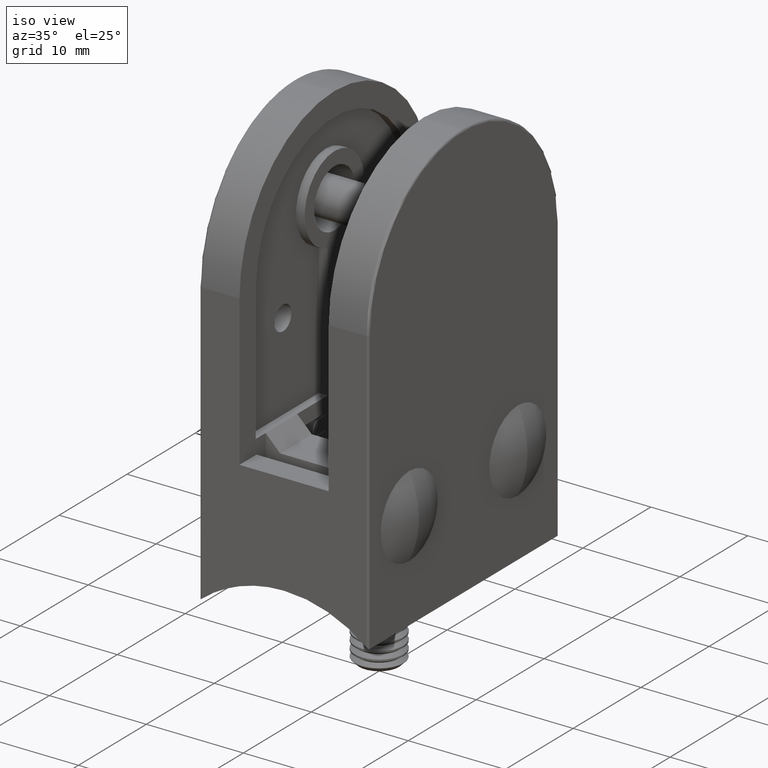
[diagram: clean part render]
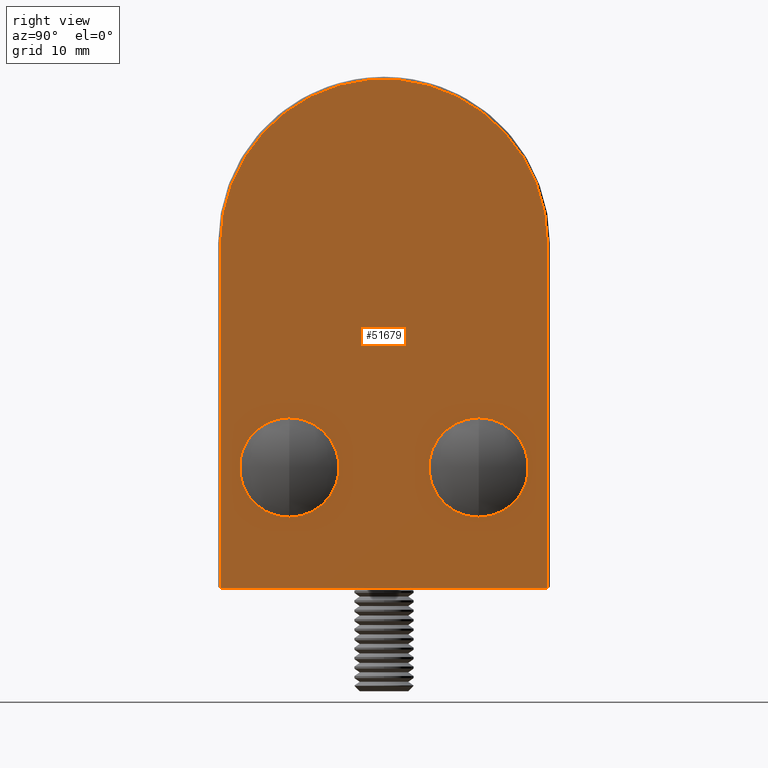
[diagram: tour spotlight — one face highlighted and labeled with its STEP entity id]
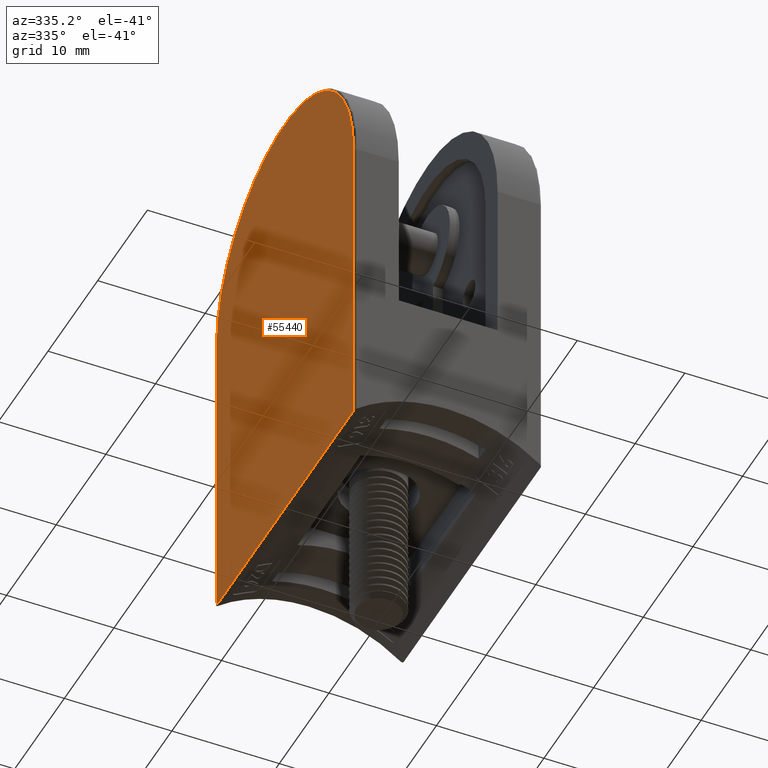
[diagram: tour spotlight — one face highlighted and labeled with its STEP entity id]
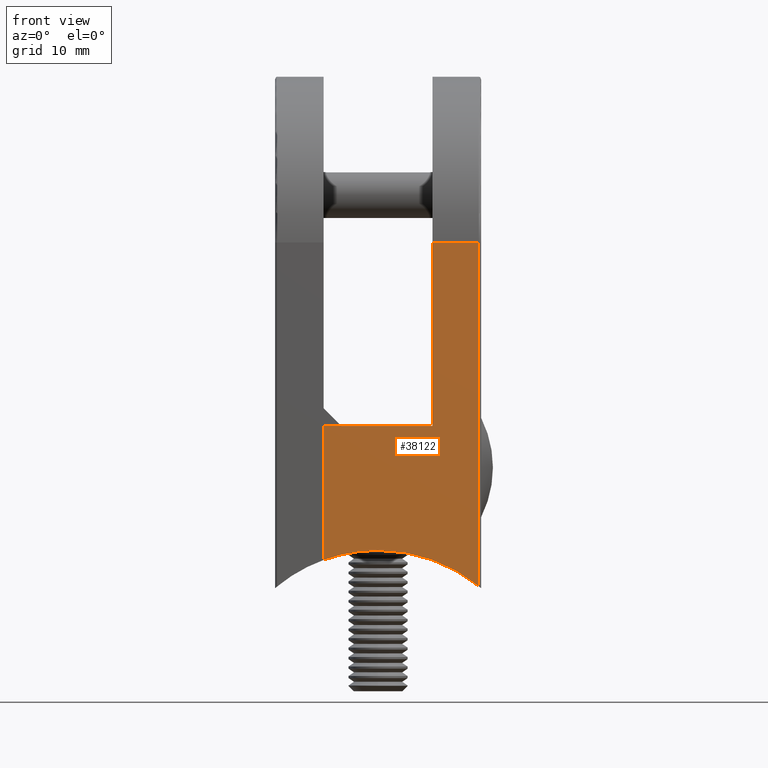
[diagram: tour spotlight — one face highlighted and labeled with its STEP entity id]
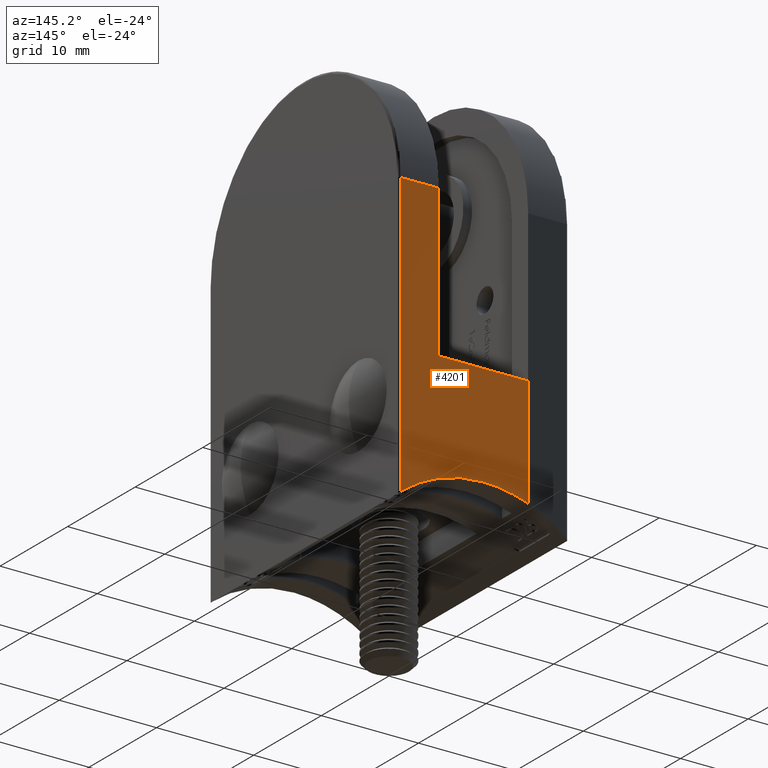
[diagram: tour spotlight — one face highlighted and labeled with its STEP entity id]
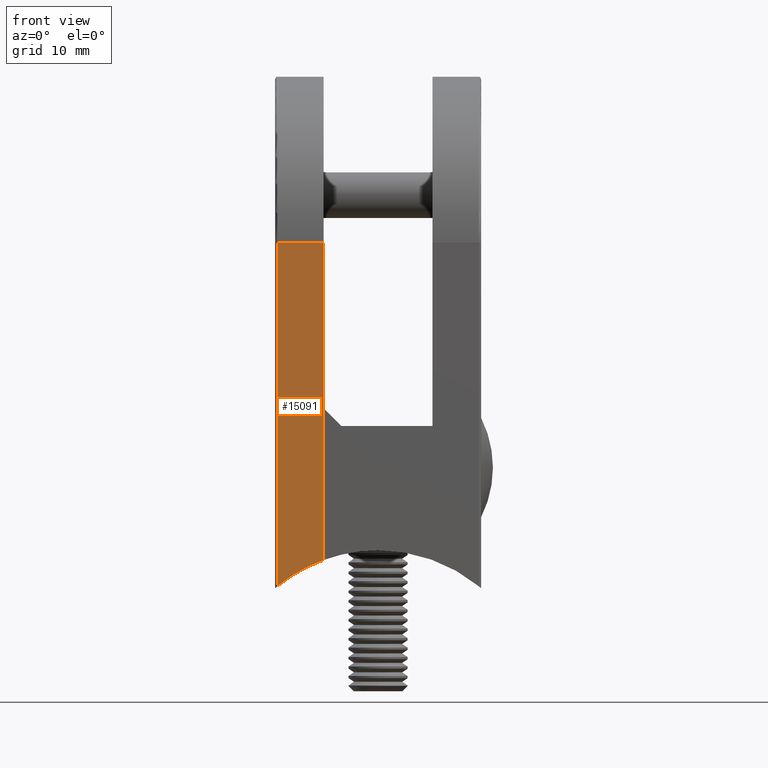
[diagram: tour spotlight — one face highlighted and labeled with its STEP entity id]
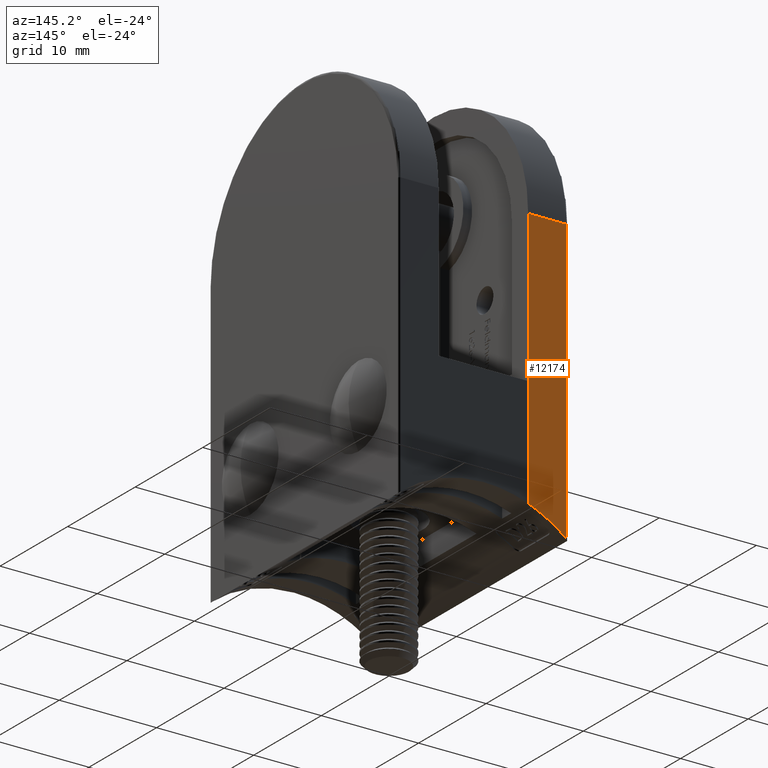
[diagram: tour spotlight — one face highlighted and labeled with its STEP entity id]
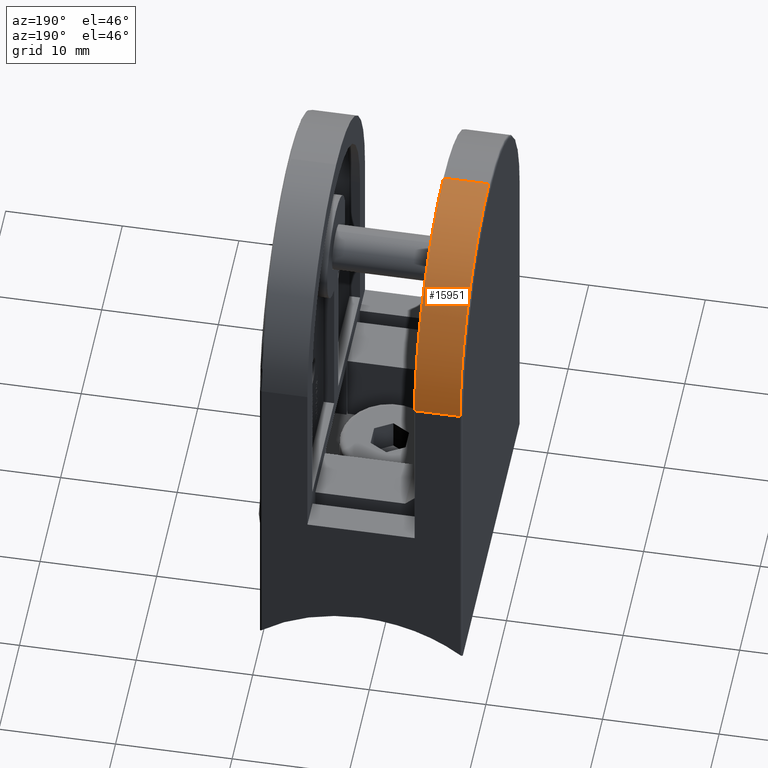
[diagram: tour spotlight — one face highlighted and labeled with its STEP entity id]
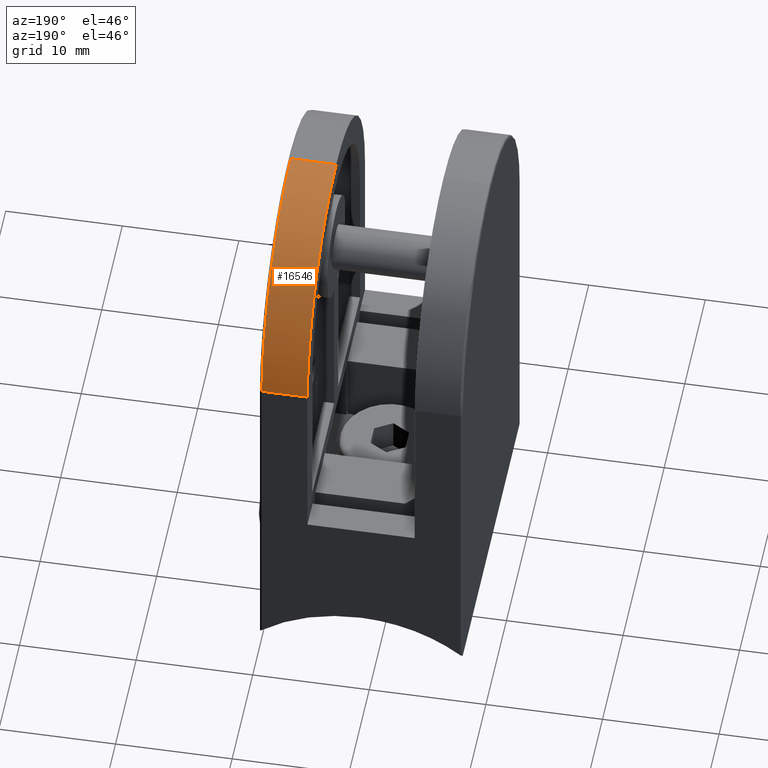
[diagram: tour spotlight — one face highlighted and labeled with its STEP entity id]
A machine part: a face-by-face anatomy tour. The part has 1387 B-rep faces; the first image is the clean iso view, then the 8 largest visible faces are spotlighted one at a time (largest first), each with its STEP entity span.

Face 1 — right view, entity #51679. In plain terms, the highlighted planar face has unit normal (-1, 0, 0).
Definition (entity closure, byte-faithful):
#716 = DIRECTION ( 'NONE',  ( -0.0000000000000000000, 6.672013369141565500E-017, -1.000000000000000000 ) ) ;
#1536 = DIRECTION ( 'NONE',  ( 0.0000000000000000000, 0.0000000000000000000, -1.000000000000000000 ) ) ;
#2197 = CARTESIAN_POINT ( 'NONE',  ( -3.469446951953614200E-015, -8.000000000000000000, 6.999999999999992900 ) ) ;
#2755 = EDGE_CURVE ( 'NONE', #27690, #36211, #44305, .T. ) ;
#2983 = VERTEX_POINT ( 'NONE', #19299 ) ;
#3291 = CIRCLE ( 'NONE', #58271, 4.099999999999998800 ) ;
#4502 = DIRECTION ( 'NONE',  ( 0.0000000000000000000, 0.0000000000000000000, 1.000000000000000000 ) ) ;
#4961 = VECTOR ( 'NONE', #716, 1000.000000000000000 ) ;
#5040 = EDGE_CURVE ( 'NONE', #36211, #27690, #3291, .T. ) ;
#5550 = AXIS2_PLACEMENT_3D ( 'NONE', #8278, #53918, #4502 ) ;
#5699 = EDGE_CURVE ( 'NONE', #12310, #24346, #25059, .T. ) ;
#6159 = FACE_OUTER_BOUND ( 'NONE', #17162, .T. ) ;
#6217 = DIRECTION ( 'NONE',  ( -1.000000000000000000, -0.0000000000000000000, -0.0000000000000000000 ) ) ;
#7561 = ORIENTED_EDGE ( 'NONE', *, *, #56057, .T. ) ;
#7860 = CARTESIAN_POINT ( 'NONE',  ( 0.0000000000000000000, 13.79999999999999400, 25.99999999999999600 ) ) ;
#8278 = CARTESIAN_POINT ( 'NONE',  ( -3.469446951953614200E-015, 8.000000000000000000, 6.999999999999992900 ) ) ;
#8598 = ORIENTED_EDGE ( 'NONE', *, *, #52584, .F. ) ;
#10802 = DIRECTION ( 'NONE',  ( 0.0000000000000000000, -1.000000000000000000, 0.0000000000000000000 ) ) ;
#11569 = PLANE ( 'NONE',  #36671 ) ;
#12310 = VERTEX_POINT ( 'NONE', #36518 ) ;
#13453 = DIRECTION ( 'NONE',  ( -0.0000000000000000000, 6.672013369141565500E-017, 1.000000000000000000 ) ) ;
#14539 = CARTESIAN_POINT ( 'NONE',  ( -3.469446951953614200E-015, 8.000000000000000000, 2.899999999999993700 ) ) ;
#14567 = CARTESIAN_POINT ( 'NONE',  ( 0.0000000000000000000, -13.99999999999999800, -3.192685536652395000 ) ) ;
#15060 = LINE ( 'NONE', #14567, #34160 ) ;
#16161 = DIRECTION ( 'NONE',  ( 0.0000000000000000000, 0.0000000000000000000, 1.000000000000000000 ) ) ;
#16860 = EDGE_CURVE ( 'NONE', #28738, #57009, #36040, .T. ) ;
#17162 = EDGE_LOOP ( 'NONE', ( #24273, #7561, #29109, #23698 ) ) ;
#17283 = CARTESIAN_POINT ( 'NONE',  ( -3.469446951953614200E-015, -8.000000000000000000, 6.999999999999992900 ) ) ;
#18195 = CIRCLE ( 'NONE', #30291, 4.099999999999998800 ) ;
#19137 = CARTESIAN_POINT ( 'NONE',  ( -3.469446951953614200E-015, 8.000000000000000000, 6.999999999999992900 ) ) ;
#19299 = CARTESIAN_POINT ( 'NONE',  ( 0.0000000000000000000, -13.79999999999999700, -3.192685536652395000 ) ) ;
#20245 = DIRECTION ( 'NONE',  ( 1.000000000000000000, 0.0000000000000000000, 0.0000000000000000000 ) ) ;
#20595 = LINE ( 'NONE', #52582, #51028 ) ;
#21629 = DIRECTION ( 'NONE',  ( -1.000000000000000000, -0.0000000000000000000, -0.0000000000000000000 ) ) ;
#22022 = DIRECTION ( 'NONE',  ( 0.0000000000000000000, 0.0000000000000000000, 1.000000000000000000 ) ) ;
#22469 = CARTESIAN_POINT ( 'NONE',  ( -3.469446951953614200E-015, -8.000000000000000000, 11.09999999999999300 ) ) ;
#23640 = DIRECTION ( 'NONE',  ( -1.000000000000000000, -0.0000000000000000000, -0.0000000000000000000 ) ) ;
#23698 = ORIENTED_EDGE ( 'NONE', *, *, #57799, .T. ) ;
#24273 = ORIENTED_EDGE ( 'NONE', *, *, #16860, .T. ) ;
#24346 = VERTEX_POINT ( 'NONE', #22469 ) ;
#25059 = CIRCLE ( 'NONE', #53331, 4.099999999999998800 ) ;
#25658 = EDGE_LOOP ( 'NONE', ( #8598, #48397 ) ) ;
#26596 = CARTESIAN_POINT ( 'NONE',  ( 0.0000000000000000000, -13.79999999999999400, 25.99999999999999600 ) ) ;
#27243 = DIRECTION ( 'NONE',  ( 0.0000000000000000000, 0.0000000000000000000, 1.000000000000000000 ) ) ;
#27690 = VERTEX_POINT ( 'NONE', #45342 ) ;
#28738 = VERTEX_POINT ( 'NONE', #7860 ) ;
#28871 = AXIS2_PLACEMENT_3D ( 'NONE', #33264, #6217, #1536 ) ;
#29109 = ORIENTED_EDGE ( 'NONE', *, *, #45191, .T. ) ;
#30291 = AXIS2_PLACEMENT_3D ( 'NONE', #17283, #21629, #22022 ) ;
#32990 = ORIENTED_EDGE ( 'NONE', *, *, #5040, .F. ) ;
#33264 = CARTESIAN_POINT ( 'NONE',  ( 0.0000000000000000000, 0.0000000000000000000, 25.99999999999999600 ) ) ;
#33737 = DIRECTION ( 'NONE',  ( -1.000000000000000000, -0.0000000000000000000, -0.0000000000000000000 ) ) ;
#33883 = DIRECTION ( 'NONE',  ( 0.0000000000000000000, 0.0000000000000000000, -1.000000000000000000 ) ) ;
#34160 = VECTOR ( 'NONE', #10802, 1000.000000000000000 ) ;
#35418 = VERTEX_POINT ( 'NONE', #26596 ) ;
#36040 = LINE ( 'NONE', #54626, #4961 ) ;
#36211 = VERTEX_POINT ( 'NONE', #14539 ) ;
#36518 = CARTESIAN_POINT ( 'NONE',  ( -3.469446951953614200E-015, -8.000000000000000000, 2.899999999999993700 ) ) ;
#36524 = FACE_BOUND ( 'NONE', #37002, .T. ) ;
#36671 = AXIS2_PLACEMENT_3D ( 'NONE', #38584, #20245, #33883 ) ;
#37002 = EDGE_LOOP ( 'NONE', ( #52027, #32990 ) ) ;
#38584 = CARTESIAN_POINT ( 'NONE',  ( 0.0000000000000000000, 0.0000000000000000000, 25.99999999999999600 ) ) ;
#39659 = CIRCLE ( 'NONE', #28871, 13.79999999999999400 ) ;
#40749 = FACE_BOUND ( 'NONE', #25658, .T. ) ;
#44305 = CIRCLE ( 'NONE', #5550, 4.099999999999998800 ) ;
#45191 = EDGE_CURVE ( 'NONE', #2983, #35418, #20595, .T. ) ;
#45342 = CARTESIAN_POINT ( 'NONE',  ( -3.469446951953614200E-015, 8.000000000000000000, 11.09999999999999300 ) ) ;
#48397 = ORIENTED_EDGE ( 'NONE', *, *, #5699, .F. ) ;
#51028 = VECTOR ( 'NONE', #13453, 1000.000000000000000 ) ;
#51679 = ADVANCED_FACE ( 'NONE', ( #36524, #40749, #6159 ), #11569, .F. ) ;
#52027 = ORIENTED_EDGE ( 'NONE', *, *, #2755, .F. ) ;
#52582 = CARTESIAN_POINT ( 'NONE',  ( 0.0000000000000000000, -13.79999999999999400, 25.99999999999999600 ) ) ;
#52584 = EDGE_CURVE ( 'NONE', #24346, #12310, #18195, .T. ) ;
#53331 = AXIS2_PLACEMENT_3D ( 'NONE', #2197, #33737, #16161 ) ;
#53918 = DIRECTION ( 'NONE',  ( -1.000000000000000000, -0.0000000000000000000, -0.0000000000000000000 ) ) ;
#54626 = CARTESIAN_POINT ( 'NONE',  ( 0.0000000000000000000, 13.79999999999999400, 25.99999999999999600 ) ) ;
#56057 = EDGE_CURVE ( 'NONE', #57009, #2983, #15060, .T. ) ;
#57009 = VERTEX_POINT ( 'NONE', #58199 ) ;
#57799 = EDGE_CURVE ( 'NONE', #35418, #28738, #39659, .T. ) ;
#58199 = CARTESIAN_POINT ( 'NONE',  ( 0.0000000000000000000, 13.79999999999999700, -3.192685536652402100 ) ) ;
#58271 = AXIS2_PLACEMENT_3D ( 'NONE', #19137, #23640, #27243 ) ;

Face 2 — auxiliary view, entity #55440. In plain terms, the highlighted planar face has unit normal (1, 0, 0).
Definition (entity closure, byte-faithful):
#3877 = DIRECTION ( 'NONE',  ( 0.0000000000000000000, -1.000000000000000000, 0.0000000000000000000 ) ) ;
#4145 = EDGE_CURVE ( 'NONE', #19474, #44019, #27920, .T. ) ;
#5224 = ORIENTED_EDGE ( 'NONE', *, *, #9034, .T. ) ;
#6655 = CARTESIAN_POINT ( 'NONE',  ( 0.0000000000000000000, -13.79999999999999500, 25.99999999999999600 ) ) ;
#8171 = EDGE_LOOP ( 'NONE', ( #34215, #36310, #5224, #12371 ) ) ;
#8174 = CARTESIAN_POINT ( 'NONE',  ( 0.0000000000000000000, 13.79999999999999500, 25.99999999999999600 ) ) ;
#9034 = EDGE_CURVE ( 'NONE', #39708, #19474, #48897, .T. ) ;
#12371 = ORIENTED_EDGE ( 'NONE', *, *, #4145, .T. ) ;
#13425 = DIRECTION ( 'NONE',  ( 0.0000000000000000000, -0.0000000000000000000, -1.000000000000000000 ) ) ;
#15015 = CARTESIAN_POINT ( 'NONE',  ( 0.0000000000000000000, 0.0000000000000000000, 25.99999999999999600 ) ) ;
#16413 = VECTOR ( 'NONE', #19406, 1000.000000000000000 ) ;
#16724 = DIRECTION ( 'NONE',  ( -1.000000000000000000, -0.0000000000000000000, -0.0000000000000000000 ) ) ;
#19406 = DIRECTION ( 'NONE',  ( -0.0000000000000000000, -0.0000000000000000000, 1.000000000000000000 ) ) ;
#19474 = VERTEX_POINT ( 'NONE', #6655 ) ;
#20312 = LINE ( 'NONE', #38546, #52857 ) ;
#27920 = CIRCLE ( 'NONE', #51743, 13.79999999999999500 ) ;
#28289 = CARTESIAN_POINT ( 'NONE',  ( 0.0000000000000000000, -13.79999999999999500, 25.99999999999999600 ) ) ;
#31958 = CARTESIAN_POINT ( 'NONE',  ( 8.131516293641283300E-017, -13.79999999999999500, -3.192685536652393200 ) ) ;
#32103 = FACE_OUTER_BOUND ( 'NONE', #8171, .T. ) ;
#32238 = DIRECTION ( 'NONE',  ( 0.0000000000000000000, 0.0000000000000000000, -1.000000000000000000 ) ) ;
#34215 = ORIENTED_EDGE ( 'NONE', *, *, #43221, .T. ) ;
#36310 = ORIENTED_EDGE ( 'NONE', *, *, #39945, .T. ) ;
#38546 = CARTESIAN_POINT ( 'NONE',  ( 0.0000000000000000000, -13.99999999999999500, -3.192685536652393200 ) ) ;
#39708 = VERTEX_POINT ( 'NONE', #31958 ) ;
#39945 = EDGE_CURVE ( 'NONE', #49513, #39708, #20312, .T. ) ;
#40533 = VECTOR ( 'NONE', #13425, 1000.000000000000000 ) ;
#41257 = LINE ( 'NONE', #57510, #40533 ) ;
#41648 = PLANE ( 'NONE',  #54993 ) ;
#43221 = EDGE_CURVE ( 'NONE', #44019, #49513, #41257, .T. ) ;
#44019 = VERTEX_POINT ( 'NONE', #8174 ) ;
#45542 = CARTESIAN_POINT ( 'NONE',  ( 0.0000000000000000000, 13.79999999999999400, -3.192685536652393200 ) ) ;
#46591 = DIRECTION ( 'NONE',  ( 1.000000000000000000, 0.0000000000000000000, 0.0000000000000000000 ) ) ;
#48897 = LINE ( 'NONE', #28289, #16413 ) ;
#49513 = VERTEX_POINT ( 'NONE', #45542 ) ;
#51743 = AXIS2_PLACEMENT_3D ( 'NONE', #53504, #16724, #57660 ) ;
#52857 = VECTOR ( 'NONE', #3877, 1000.000000000000000 ) ;
#53504 = CARTESIAN_POINT ( 'NONE',  ( 0.0000000000000000000, 0.0000000000000000000, 25.99999999999999600 ) ) ;
#54993 = AXIS2_PLACEMENT_3D ( 'NONE', #15015, #46591, #32238 ) ;
#55440 = ADVANCED_FACE ( 'NONE', ( #32103 ), #41648, .F. ) ;
#57510 = CARTESIAN_POINT ( 'NONE',  ( 0.0000000000000000000, 13.79999999999999500, 25.99999999999999600 ) ) ;
#57660 = DIRECTION ( 'NONE',  ( 0.0000000000000000000, 0.0000000000000000000, -1.000000000000000000 ) ) ;

Face 3 — front view, entity #38122. In plain terms, the highlighted planar face has unit normal (-0, 1, 0).
Definition (entity closure, byte-faithful):
#1375 = VERTEX_POINT ( 'NONE', #5293 ) ;
#3148 = CARTESIAN_POINT ( 'NONE',  ( 4.099999999999999600, 13.99999999999999300, 25.99999999999999600 ) ) ;
#3501 = VERTEX_POINT ( 'NONE', #38706 ) ;
#5293 = CARTESIAN_POINT ( 'NONE',  ( 4.099999999999999600, 13.99999999999999500, 10.49999999999999300 ) ) ;
#6436 = CARTESIAN_POINT ( 'NONE',  ( 4.099999999999999600, 13.99999999999999300, 25.99999999999999600 ) ) ;
#7989 = AXIS2_PLACEMENT_3D ( 'NONE', #3148, #48133, #52520 ) ;
#8605 = LINE ( 'NONE', #25862, #52387 ) ;
#8696 = CARTESIAN_POINT ( 'NONE',  ( 13.29999999999999900, 13.99999999999999500, 10.49999999999999300 ) ) ;
#10483 = VERTEX_POINT ( 'NONE', #38094 ) ;
#13405 = FACE_OUTER_BOUND ( 'NONE', #58086, .T. ) ;
#14702 = DIRECTION ( 'NONE',  ( 0.0000000000000000000, -1.000000000000000000, -6.672013369141565500E-017 ) ) ;
#15075 = DIRECTION ( 'NONE',  ( 0.0000000000000000000, 1.289757231209522100E-016, -1.000000000000000000 ) ) ;
#15724 = DIRECTION ( 'NONE',  ( -1.000000000000000000, -0.0000000000000000000, -0.0000000000000000000 ) ) ;
#15755 = EDGE_CURVE ( 'NONE', #51602, #1375, #26922, .T. ) ;
#16836 = VERTEX_POINT ( 'NONE', #31299 ) ;
#16891 = CARTESIAN_POINT ( 'NONE',  ( 8.699999999999999300, 13.99999999999999500, -13.44999999999999900 ) ) ;
#18229 = EDGE_CURVE ( 'NONE', #1375, #56488, #57915, .T. ) ;
#20310 = CARTESIAN_POINT ( 'NONE',  ( 4.099999999999999600, 13.99999999999999300, 25.99999999999999600 ) ) ;
#20386 = AXIS2_PLACEMENT_3D ( 'NONE', #16891, #53280, #49301 ) ;
#20387 = ORIENTED_EDGE ( 'NONE', *, *, #52612, .T. ) ;
#22733 = AXIS2_PLACEMENT_3D ( 'NONE', #42099, #14702, #15075 ) ;
#24442 = EDGE_CURVE ( 'NONE', #56488, #16836, #29181, .T. ) ;
#24762 = EDGE_CURVE ( 'NONE', #3501, #47650, #30587, .T. ) ;
#25612 = PLANE ( 'NONE',  #7989 ) ;
#25862 = CARTESIAN_POINT ( 'NONE',  ( 13.29999999999999900, 13.99999999999999500, -6.938893903907228400E-015 ) ) ;
#26777 = LINE ( 'NONE', #38309, #54396 ) ;
#26922 = LINE ( 'NONE', #38201, #40332 ) ;
#29181 = LINE ( 'NONE', #6436, #46865 ) ;
#29429 = CIRCLE ( 'NONE', #20386, 13.44999999999999900 ) ;
#30587 = CIRCLE ( 'NONE', #22733, 13.44999999999999900 ) ;
#31267 = CARTESIAN_POINT ( 'NONE',  ( 8.699999999999999300, 13.99999999999999300, 0.0000000000000000000 ) ) ;
#31299 = CARTESIAN_POINT ( 'NONE',  ( 0.2000000000000000900, 13.99999999999999300, 25.99999999999999600 ) ) ;
#32828 = ORIENTED_EDGE ( 'NONE', *, *, #24442, .F. ) ;
#34347 = ORIENTED_EDGE ( 'NONE', *, *, #58449, .F. ) ;
#34954 = DIRECTION ( 'NONE',  ( 0.0000000000000000000, 0.0000000000000000000, 1.000000000000000000 ) ) ;
#36417 = ORIENTED_EDGE ( 'NONE', *, *, #18229, .F. ) ;
#38094 = CARTESIAN_POINT ( 'NONE',  ( 0.2000000000000001200, 13.99999999999999600, -3.026349008144994600 ) ) ;
#38122 = ADVANCED_FACE ( 'NONE', ( #13405 ), #25612, .F. ) ;
#38201 = CARTESIAN_POINT ( 'NONE',  ( 13.29999999999999900, 13.99999999999999500, 10.49999999999999300 ) ) ;
#38309 = CARTESIAN_POINT ( 'NONE',  ( 0.2000000000000000900, 13.99999999999999300, 25.99999999999999600 ) ) ;
#38706 = CARTESIAN_POINT ( 'NONE',  ( 13.29999999999999700, 13.99999999999999500, -0.8110720391324346400 ) ) ;
#40332 = VECTOR ( 'NONE', #15724, 1000.000000000000000 ) ;
#41961 = DIRECTION ( 'NONE',  ( -1.000000000000000000, -0.0000000000000000000, -0.0000000000000000000 ) ) ;
#42099 = CARTESIAN_POINT ( 'NONE',  ( 8.699999999999999300, 13.99999999999999500, -13.44999999999999900 ) ) ;
#46865 = VECTOR ( 'NONE', #41961, 1000.000000000000000 ) ;
#47650 = VERTEX_POINT ( 'NONE', #31267 ) ;
#48133 = DIRECTION ( 'NONE',  ( 0.0000000000000000000, -1.000000000000000000, -6.672013369141565500E-017 ) ) ;
#49301 = DIRECTION ( 'NONE',  ( 0.0000000000000000000, 1.289757231209522100E-016, -1.000000000000000000 ) ) ;
#50113 = EDGE_CURVE ( 'NONE', #10483, #16836, #26777, .T. ) ;
#51602 = VERTEX_POINT ( 'NONE', #8696 ) ;
#51952 = DIRECTION ( 'NONE',  ( -0.0000000000000000000, -6.672013369141565500E-017, 1.000000000000000000 ) ) ;
#52331 = CARTESIAN_POINT ( 'NONE',  ( 4.099999999999999600, 13.99999999999999300, 25.99999999999999600 ) ) ;
#52387 = VECTOR ( 'NONE', #34954, 1000.000000000000000 ) ;
#52520 = DIRECTION ( 'NONE',  ( 0.0000000000000000000, 6.672013369141565500E-017, -1.000000000000000000 ) ) ;
#52612 = EDGE_CURVE ( 'NONE', #47650, #10483, #29429, .T. ) ;
#52736 = ORIENTED_EDGE ( 'NONE', *, *, #50113, .T. ) ;
#53280 = DIRECTION ( 'NONE',  ( 0.0000000000000000000, -1.000000000000000000, -6.672013369141565500E-017 ) ) ;
#53533 = ORIENTED_EDGE ( 'NONE', *, *, #24762, .T. ) ;
#53827 = ORIENTED_EDGE ( 'NONE', *, *, #15755, .F. ) ;
#54365 = VECTOR ( 'NONE', #51952, 1000.000000000000000 ) ;
#54396 = VECTOR ( 'NONE', #56778, 1000.000000000000000 ) ;
#56488 = VERTEX_POINT ( 'NONE', #52331 ) ;
#56778 = DIRECTION ( 'NONE',  ( 0.0000000000000000000, -6.672013369141565500E-017, 1.000000000000000000 ) ) ;
#57915 = LINE ( 'NONE', #20310, #54365 ) ;
#58086 = EDGE_LOOP ( 'NONE', ( #34347, #53533, #20387, #52736, #32828, #36417, #53827 ) ) ;
#58449 = EDGE_CURVE ( 'NONE', #3501, #51602, #8605, .T. ) ;

Face 4 — auxiliary view, entity #4201. In plain terms, the highlighted planar face has unit normal (0, -1, -0).
Definition (entity closure, byte-faithful):
#457 = CARTESIAN_POINT ( 'NONE',  ( 8.699999999999999300, -13.99999999999999800, -13.44999999999999900 ) ) ;
#672 = DIRECTION ( 'NONE',  ( 0.0000000000000000000, 0.0000000000000000000, 1.000000000000000000 ) ) ;
#1190 = VERTEX_POINT ( 'NONE', #27003 ) ;
#1952 = VECTOR ( 'NONE', #55315, 1000.000000000000000 ) ;
#3926 = CARTESIAN_POINT ( 'NONE',  ( 0.2000000000000000900, -13.99999999999999500, -6.938893903907228400E-015 ) ) ;
#4201 = ADVANCED_FACE ( 'NONE', ( #28640 ), #25554, .F. ) ;
#6640 = EDGE_LOOP ( 'NONE', ( #43501, #52207, #13578, #8823, #40469, #10346, #13765 ) ) ;
#7626 = CARTESIAN_POINT ( 'NONE',  ( 4.099999999999999600, -13.99999999999999500, -6.938893903907228400E-015 ) ) ;
#8823 = ORIENTED_EDGE ( 'NONE', *, *, #24975, .F. ) ;
#10346 = ORIENTED_EDGE ( 'NONE', *, *, #52404, .F. ) ;
#10437 = VECTOR ( 'NONE', #19111, 1000.000000000000000 ) ;
#11917 = AXIS2_PLACEMENT_3D ( 'NONE', #31847, #22529, #672 ) ;
#13578 = ORIENTED_EDGE ( 'NONE', *, *, #17472, .T. ) ;
#13765 = ORIENTED_EDGE ( 'NONE', *, *, #34211, .T. ) ;
#14297 = AXIS2_PLACEMENT_3D ( 'NONE', #7626, #57211, #21422 ) ;
#15016 = EDGE_CURVE ( 'NONE', #29301, #45323, #37887, .T. ) ;
#15789 = VERTEX_POINT ( 'NONE', #20658 ) ;
#17472 = EDGE_CURVE ( 'NONE', #45323, #32755, #43020, .T. ) ;
#18209 = VECTOR ( 'NONE', #49130, 1000.000000000000000 ) ;
#19111 = DIRECTION ( 'NONE',  ( -0.0000000000000000000, -6.672013369141565500E-017, -1.000000000000000000 ) ) ;
#19134 = CARTESIAN_POINT ( 'NONE',  ( 8.699999999999999300, -13.99999999999999800, 0.0000000000000000000 ) ) ;
#19440 = EDGE_CURVE ( 'NONE', #47051, #1190, #21025, .T. ) ;
#20658 = CARTESIAN_POINT ( 'NONE',  ( 0.2000000000000000900, -13.99999999999999300, 25.99999999999999600 ) ) ;
#21025 = LINE ( 'NONE', #42179, #1952 ) ;
#21395 = VECTOR ( 'NONE', #34614, 1000.000000000000000 ) ;
#21422 = DIRECTION ( 'NONE',  ( 0.0000000000000000000, 6.672013369141565500E-017, 1.000000000000000000 ) ) ;
#21680 = CARTESIAN_POINT ( 'NONE',  ( 4.099999999999999600, -13.99999999999999300, 25.99999999999999600 ) ) ;
#22529 = DIRECTION ( 'NONE',  ( 0.0000000000000000000, 1.000000000000000000, 0.0000000000000000000 ) ) ;
#24975 = EDGE_CURVE ( 'NONE', #47051, #32755, #29883, .T. ) ;
#25154 = LINE ( 'NONE', #33204, #54934 ) ;
#25554 = PLANE ( 'NONE',  #14297 ) ;
#25917 = CARTESIAN_POINT ( 'NONE',  ( 13.29999999999999900, -13.99999999999999800, -0.8110720391324328600 ) ) ;
#27003 = CARTESIAN_POINT ( 'NONE',  ( 4.099999999999999600, -13.99999999999999500, 10.49999999999999100 ) ) ;
#28640 = FACE_OUTER_BOUND ( 'NONE', #6640, .T. ) ;
#29301 = VERTEX_POINT ( 'NONE', #49474 ) ;
#29883 = LINE ( 'NONE', #52623, #21395 ) ;
#31847 = CARTESIAN_POINT ( 'NONE',  ( 8.699999999999999300, -13.99999999999999800, -13.44999999999999900 ) ) ;
#32566 = DIRECTION ( 'NONE',  ( 0.0000000000000000000, 1.000000000000000000, 0.0000000000000000000 ) ) ;
#32755 = VERTEX_POINT ( 'NONE', #25917 ) ;
#33204 = CARTESIAN_POINT ( 'NONE',  ( 4.099999999999999600, -13.99999999999999300, 25.99999999999999600 ) ) ;
#34211 = EDGE_CURVE ( 'NONE', #44486, #15789, #25154, .T. ) ;
#34614 = DIRECTION ( 'NONE',  ( -0.0000000000000000000, 3.304235192336776500E-016, -1.000000000000000000 ) ) ;
#34646 = CARTESIAN_POINT ( 'NONE',  ( 13.29999999999999900, -13.99999999999999800, 10.49999999999999100 ) ) ;
#37887 = CIRCLE ( 'NONE', #11917, 13.44999999999999900 ) ;
#39645 = EDGE_CURVE ( 'NONE', #15789, #29301, #57119, .T. ) ;
#40469 = ORIENTED_EDGE ( 'NONE', *, *, #19440, .T. ) ;
#41196 = CARTESIAN_POINT ( 'NONE',  ( 4.099999999999999600, -13.99999999999999500, -6.938893903907228400E-015 ) ) ;
#41405 = DIRECTION ( 'NONE',  ( 0.0000000000000000000, 0.0000000000000000000, 1.000000000000000000 ) ) ;
#42179 = CARTESIAN_POINT ( 'NONE',  ( 13.29999999999999900, -13.99999999999999800, 10.49999999999999100 ) ) ;
#43020 = CIRCLE ( 'NONE', #53233, 13.44999999999999900 ) ;
#43501 = ORIENTED_EDGE ( 'NONE', *, *, #39645, .T. ) ;
#44486 = VERTEX_POINT ( 'NONE', #21680 ) ;
#45323 = VERTEX_POINT ( 'NONE', #19134 ) ;
#46381 = LINE ( 'NONE', #41196, #10437 ) ;
#47051 = VERTEX_POINT ( 'NONE', #34646 ) ;
#49130 = DIRECTION ( 'NONE',  ( 0.0000000000000000000, -6.672013369141565500E-017, -1.000000000000000000 ) ) ;
#49474 = CARTESIAN_POINT ( 'NONE',  ( 0.2000000000000005100, -13.99999999999999800, -3.026349008144985800 ) ) ;
#51026 = DIRECTION ( 'NONE',  ( -1.000000000000000000, -0.0000000000000000000, -0.0000000000000000000 ) ) ;
#52207 = ORIENTED_EDGE ( 'NONE', *, *, #15016, .T. ) ;
#52404 = EDGE_CURVE ( 'NONE', #44486, #1190, #46381, .T. ) ;
#52623 = CARTESIAN_POINT ( 'NONE',  ( 13.29999999999999900, -13.99999999999999500, -6.938893903907228400E-015 ) ) ;
#53233 = AXIS2_PLACEMENT_3D ( 'NONE', #457, #32566, #41405 ) ;
#54934 = VECTOR ( 'NONE', #51026, 1000.000000000000000 ) ;
#55315 = DIRECTION ( 'NONE',  ( -1.000000000000000000, -0.0000000000000000000, -0.0000000000000000000 ) ) ;
#57119 = LINE ( 'NONE', #3926, #18209 ) ;
#57211 = DIRECTION ( 'NONE',  ( 0.0000000000000000000, 1.000000000000000000, -6.672013369141565500E-017 ) ) ;

Face 5 — front view, entity #15091. In plain terms, the highlighted planar face has unit normal (0, 1, 0).
Definition (entity closure, byte-faithful):
#4974 = CARTESIAN_POINT ( 'NONE',  ( 4.099999999999999600, -13.99999999999999500, -3.469446951953614200E-015 ) ) ;
#5160 = DIRECTION ( 'NONE',  ( 0.0000000000000000000, 1.000000000000000000, 0.0000000000000000000 ) ) ;
#6148 = AXIS2_PLACEMENT_3D ( 'NONE', #21958, #43883, #25912 ) ;
#6458 = LINE ( 'NONE', #8343, #40382 ) ;
#6521 = CARTESIAN_POINT ( 'NONE',  ( 4.099999999999999600, -13.99999999999999500, 25.99999999999999600 ) ) ;
#8343 = CARTESIAN_POINT ( 'NONE',  ( 4.099999999999999600, -13.99999999999999500, -3.469446951953614200E-015 ) ) ;
#9445 = LINE ( 'NONE', #56830, #21423 ) ;
#11056 = CARTESIAN_POINT ( 'NONE',  ( 0.2000000000000000900, -13.99999999999999500, -3.026349008144985800 ) ) ;
#15091 = ADVANCED_FACE ( 'NONE', ( #25924 ), #23100, .F. ) ;
#16026 = VERTEX_POINT ( 'NONE', #11056 ) ;
#17788 = DIRECTION ( 'NONE',  ( -0.0000000000000000000, -0.0000000000000000000, -1.000000000000000000 ) ) ;
#19105 = AXIS2_PLACEMENT_3D ( 'NONE', #4974, #5160, #36725 ) ;
#21423 = VECTOR ( 'NONE', #29719, 1000.000000000000000 ) ;
#21958 = CARTESIAN_POINT ( 'NONE',  ( 8.699999999999997500, -13.99999999999999500, -13.44999999999999900 ) ) ;
#22135 = ORIENTED_EDGE ( 'NONE', *, *, #25727, .F. ) ;
#23100 = PLANE ( 'NONE',  #19105 ) ;
#25475 = EDGE_LOOP ( 'NONE', ( #51629, #27871, #22135, #25712 ) ) ;
#25712 = ORIENTED_EDGE ( 'NONE', *, *, #51989, .T. ) ;
#25727 = EDGE_CURVE ( 'NONE', #33049, #40252, #6458, .T. ) ;
#25912 = DIRECTION ( 'NONE',  ( 0.0000000000000000000, 0.0000000000000000000, 1.000000000000000000 ) ) ;
#25924 = FACE_OUTER_BOUND ( 'NONE', #25475, .T. ) ;
#27093 = CARTESIAN_POINT ( 'NONE',  ( 4.099999999999999600, -13.99999999999999500, 25.99999999999999600 ) ) ;
#27871 = ORIENTED_EDGE ( 'NONE', *, *, #57445, .T. ) ;
#29719 = DIRECTION ( 'NONE',  ( 0.0000000000000000000, 0.0000000000000000000, -1.000000000000000000 ) ) ;
#31576 = LINE ( 'NONE', #6521, #46446 ) ;
#33049 = VERTEX_POINT ( 'NONE', #27093 ) ;
#36725 = DIRECTION ( 'NONE',  ( 0.0000000000000000000, -0.0000000000000000000, 1.000000000000000000 ) ) ;
#38058 = DIRECTION ( 'NONE',  ( -1.000000000000000000, -0.0000000000000000000, -0.0000000000000000000 ) ) ;
#38248 = CIRCLE ( 'NONE', #6148, 13.44999999999999900 ) ;
#40252 = VERTEX_POINT ( 'NONE', #47757 ) ;
#40382 = VECTOR ( 'NONE', #17788, 1000.000000000000000 ) ;
#41907 = CARTESIAN_POINT ( 'NONE',  ( 0.2000000000000000900, -13.99999999999999500, 25.99999999999999600 ) ) ;
#43883 = DIRECTION ( 'NONE',  ( 0.0000000000000000000, 1.000000000000000000, 0.0000000000000000000 ) ) ;
#46446 = VECTOR ( 'NONE', #38058, 1000.000000000000000 ) ;
#47757 = CARTESIAN_POINT ( 'NONE',  ( 4.100000000000001400, -13.99999999999999500, -0.8110720391324346400 ) ) ;
#51629 = ORIENTED_EDGE ( 'NONE', *, *, #56881, .T. ) ;
#51989 = EDGE_CURVE ( 'NONE', #33049, #52846, #31576, .T. ) ;
#52846 = VERTEX_POINT ( 'NONE', #41907 ) ;
#56830 = CARTESIAN_POINT ( 'NONE',  ( 0.2000000000000000900, -13.99999999999999500, -3.469446951953614200E-015 ) ) ;
#56881 = EDGE_CURVE ( 'NONE', #52846, #16026, #9445, .T. ) ;
#57445 = EDGE_CURVE ( 'NONE', #16026, #40252, #38248, .T. ) ;

Face 6 — auxiliary view, entity #12174. In plain terms, the highlighted planar face has unit normal (0, -1, 0).
Definition (entity closure, byte-faithful):
#200 = LINE ( 'NONE', #55205, #31932 ) ;
#1435 = DIRECTION ( 'NONE',  ( 0.0000000000000000000, 0.0000000000000000000, 1.000000000000000000 ) ) ;
#3007 = VERTEX_POINT ( 'NONE', #50742 ) ;
#5552 = VERTEX_POINT ( 'NONE', #14068 ) ;
#6694 = DIRECTION ( 'NONE',  ( 0.0000000000000000000, 1.000000000000000000, 0.0000000000000000000 ) ) ;
#8092 = VECTOR ( 'NONE', #38862, 1000.000000000000000 ) ;
#9779 = VECTOR ( 'NONE', #11739, 1000.000000000000000 ) ;
#10485 = EDGE_CURVE ( 'NONE', #21747, #28969, #200, .T. ) ;
#11271 = DIRECTION ( 'NONE',  ( -1.000000000000000000, -0.0000000000000000000, -0.0000000000000000000 ) ) ;
#11739 = DIRECTION ( 'NONE',  ( -0.0000000000000000000, -0.0000000000000000000, 1.000000000000000000 ) ) ;
#12174 = ADVANCED_FACE ( 'NONE', ( #18361 ), #35360, .F. ) ;
#13512 = EDGE_CURVE ( 'NONE', #3007, #21747, #48636, .T. ) ;
#13819 = ORIENTED_EDGE ( 'NONE', *, *, #50631, .F. ) ;
#14068 = CARTESIAN_POINT ( 'NONE',  ( 0.2000000000000005100, 13.99999999999999500, -3.026349008144985800 ) ) ;
#14739 = CARTESIAN_POINT ( 'NONE',  ( 4.099999999999999600, 13.99999999999999500, 25.99999999999999600 ) ) ;
#18361 = FACE_OUTER_BOUND ( 'NONE', #30999, .T. ) ;
#19457 = CARTESIAN_POINT ( 'NONE',  ( 0.2000000000000000900, 13.99999999999999500, 25.99999999999999600 ) ) ;
#19811 = ORIENTED_EDGE ( 'NONE', *, *, #10485, .F. ) ;
#21747 = VERTEX_POINT ( 'NONE', #39612 ) ;
#28120 = CIRCLE ( 'NONE', #48368, 13.44999999999999900 ) ;
#28446 = EDGE_CURVE ( 'NONE', #5552, #28969, #55422, .T. ) ;
#28969 = VERTEX_POINT ( 'NONE', #19457 ) ;
#30999 = EDGE_LOOP ( 'NONE', ( #51290, #13819, #31964, #19811 ) ) ;
#31932 = VECTOR ( 'NONE', #11271, 1000.000000000000000 ) ;
#31964 = ORIENTED_EDGE ( 'NONE', *, *, #28446, .T. ) ;
#33734 = CARTESIAN_POINT ( 'NONE',  ( 8.699999999999997500, 13.99999999999999500, -13.44999999999999900 ) ) ;
#35360 = PLANE ( 'NONE',  #49688 ) ;
#36710 = DIRECTION ( 'NONE',  ( 0.0000000000000000000, -0.0000000000000000000, -1.000000000000000000 ) ) ;
#38862 = DIRECTION ( 'NONE',  ( -0.0000000000000000000, 0.0000000000000000000, 1.000000000000000000 ) ) ;
#39612 = CARTESIAN_POINT ( 'NONE',  ( 4.099999999999999600, 13.99999999999999500, 25.99999999999999600 ) ) ;
#47984 = CARTESIAN_POINT ( 'NONE',  ( 0.2000000000000000900, 13.99999999999999500, 25.99999999999999600 ) ) ;
#48368 = AXIS2_PLACEMENT_3D ( 'NONE', #33734, #6694, #1435 ) ;
#48636 = LINE ( 'NONE', #14739, #9779 ) ;
#49688 = AXIS2_PLACEMENT_3D ( 'NONE', #58121, #50388, #36710 ) ;
#50388 = DIRECTION ( 'NONE',  ( 0.0000000000000000000, -1.000000000000000000, 0.0000000000000000000 ) ) ;
#50631 = EDGE_CURVE ( 'NONE', #5552, #3007, #28120, .T. ) ;
#50742 = CARTESIAN_POINT ( 'NONE',  ( 4.100000000000001400, 13.99999999999999500, -0.8110720391324346400 ) ) ;
#51290 = ORIENTED_EDGE ( 'NONE', *, *, #13512, .F. ) ;
#55205 = CARTESIAN_POINT ( 'NONE',  ( 4.099999999999999600, 13.99999999999999500, 25.99999999999999600 ) ) ;
#55422 = LINE ( 'NONE', #47984, #8092 ) ;
#58121 = CARTESIAN_POINT ( 'NONE',  ( 4.099999999999999600, 13.99999999999999500, 25.99999999999999600 ) ) ;

Face 7 — auxiliary view, entity #15951. In plain terms, the highlighted cylindrical surface (partial cylindrical patch) has radius 14 mm, axis along (-1, -0, -0).
Definition (entity closure, byte-faithful):
#200 = LINE ( 'NONE', #55205, #31932 ) ;
#5719 = EDGE_CURVE ( 'NONE', #28969, #20569, #50565, .T. ) ;
#8693 = AXIS2_PLACEMENT_3D ( 'NONE', #53141, #30193, #48562 ) ;
#10130 = DIRECTION ( 'NONE',  ( 0.0000000000000000000, 0.0000000000000000000, 1.000000000000000000 ) ) ;
#10316 = CARTESIAN_POINT ( 'NONE',  ( 4.099999999999999600, 0.0000000000000000000, 25.99999999999999600 ) ) ;
#10485 = EDGE_CURVE ( 'NONE', #21747, #28969, #200, .T. ) ;
#11271 = DIRECTION ( 'NONE',  ( -1.000000000000000000, -0.0000000000000000000, -0.0000000000000000000 ) ) ;
#13875 = AXIS2_PLACEMENT_3D ( 'NONE', #49652, #57959, #30870 ) ;
#14797 = EDGE_LOOP ( 'NONE', ( #29131, #39901, #44628, #23614 ) ) ;
#15951 = ADVANCED_FACE ( 'NONE', ( #36814 ), #38889, .T. ) ;
#18101 = CARTESIAN_POINT ( 'NONE',  ( 0.2000000000000000900, 0.0000000000000000000, 39.99999999999999300 ) ) ;
#19457 = CARTESIAN_POINT ( 'NONE',  ( 0.2000000000000000900, 13.99999999999999500, 25.99999999999999600 ) ) ;
#20569 = VERTEX_POINT ( 'NONE', #18101 ) ;
#20703 = CARTESIAN_POINT ( 'NONE',  ( 4.099999999999999600, 0.0000000000000000000, 39.99999999999999300 ) ) ;
#20837 = CARTESIAN_POINT ( 'NONE',  ( 4.099999999999999600, 0.0000000000000000000, 39.99999999999999300 ) ) ;
#21747 = VERTEX_POINT ( 'NONE', #39612 ) ;
#22192 = EDGE_CURVE ( 'NONE', #55765, #20569, #47644, .T. ) ;
#23614 = ORIENTED_EDGE ( 'NONE', *, *, #5719, .T. ) ;
#27402 = AXIS2_PLACEMENT_3D ( 'NONE', #10316, #28444, #10130 ) ;
#28444 = DIRECTION ( 'NONE',  ( -1.000000000000000000, -0.0000000000000000000, -0.0000000000000000000 ) ) ;
#28969 = VERTEX_POINT ( 'NONE', #19457 ) ;
#29131 = ORIENTED_EDGE ( 'NONE', *, *, #22192, .F. ) ;
#30193 = DIRECTION ( 'NONE',  ( 1.000000000000000000, 0.0000000000000000000, 0.0000000000000000000 ) ) ;
#30870 = DIRECTION ( 'NONE',  ( 0.0000000000000000000, 0.0000000000000000000, -1.000000000000000000 ) ) ;
#31932 = VECTOR ( 'NONE', #11271, 1000.000000000000000 ) ;
#32939 = EDGE_CURVE ( 'NONE', #21747, #55765, #36568, .T. ) ;
#35660 = VECTOR ( 'NONE', #38973, 1000.000000000000000 ) ;
#36568 = CIRCLE ( 'NONE', #13875, 13.99999999999999500 ) ;
#36814 = FACE_OUTER_BOUND ( 'NONE', #14797, .T. ) ;
#38889 = CYLINDRICAL_SURFACE ( 'NONE', #27402, 13.99999999999999800 ) ;
#38973 = DIRECTION ( 'NONE',  ( -1.000000000000000000, -0.0000000000000000000, -0.0000000000000000000 ) ) ;
#39612 = CARTESIAN_POINT ( 'NONE',  ( 4.099999999999999600, 13.99999999999999500, 25.99999999999999600 ) ) ;
#39901 = ORIENTED_EDGE ( 'NONE', *, *, #32939, .F. ) ;
#44628 = ORIENTED_EDGE ( 'NONE', *, *, #10485, .T. ) ;
#47644 = LINE ( 'NONE', #20837, #35660 ) ;
#48562 = DIRECTION ( 'NONE',  ( 0.0000000000000000000, 0.0000000000000000000, -1.000000000000000000 ) ) ;
#49652 = CARTESIAN_POINT ( 'NONE',  ( 4.099999999999999600, 0.0000000000000000000, 25.99999999999999600 ) ) ;
#50565 = CIRCLE ( 'NONE', #8693, 13.99999999999999500 ) ;
#53141 = CARTESIAN_POINT ( 'NONE',  ( 0.2000000000000000900, 0.0000000000000000000, 25.99999999999999600 ) ) ;
#55205 = CARTESIAN_POINT ( 'NONE',  ( 4.099999999999999600, 13.99999999999999500, 25.99999999999999600 ) ) ;
#55765 = VERTEX_POINT ( 'NONE', #20703 ) ;
#57959 = DIRECTION ( 'NONE',  ( 1.000000000000000000, 0.0000000000000000000, 0.0000000000000000000 ) ) ;

Face 8 — auxiliary view, entity #16546. In plain terms, the highlighted cylindrical surface (partial cylindrical patch) has radius 14 mm, axis along (1, 0, 0).
Definition (entity closure, byte-faithful):
#403 = DIRECTION ( 'NONE',  ( -1.000000000000000000, -0.0000000000000000000, -0.0000000000000000000 ) ) ;
#3146 = VECTOR ( 'NONE', #8303, 1000.000000000000000 ) ;
#3766 = ORIENTED_EDGE ( 'NONE', *, *, #34211, .F. ) ;
#4210 = DIRECTION ( 'NONE',  ( 1.000000000000000000, 0.0000000000000000000, 0.0000000000000000000 ) ) ;
#4927 = DIRECTION ( 'NONE',  ( 0.0000000000000000000, 0.0000000000000000000, -1.000000000000000000 ) ) ;
#8240 = VERTEX_POINT ( 'NONE', #53060 ) ;
#8303 = DIRECTION ( 'NONE',  ( -1.000000000000000000, -0.0000000000000000000, -0.0000000000000000000 ) ) ;
#13293 = CARTESIAN_POINT ( 'NONE',  ( 0.2000000000000000900, 0.0000000000000000000, 25.99999999999999600 ) ) ;
#14397 = DIRECTION ( 'NONE',  ( 1.000000000000000000, 0.0000000000000000000, 0.0000000000000000000 ) ) ;
#14556 = CIRCLE ( 'NONE', #50808, 13.99999999999999300 ) ;
#14580 = CARTESIAN_POINT ( 'NONE',  ( 4.099999999999999600, 0.0000000000000000000, 25.99999999999999600 ) ) ;
#15570 = FACE_OUTER_BOUND ( 'NONE', #56597, .T. ) ;
#15789 = VERTEX_POINT ( 'NONE', #20658 ) ;
#16293 = EDGE_CURVE ( 'NONE', #28967, #44486, #53786, .T. ) ;
#16546 = ADVANCED_FACE ( 'NONE', ( #15570 ), #38131, .T. ) ;
#19852 = AXIS2_PLACEMENT_3D ( 'NONE', #31166, #403, #40773 ) ;
#20658 = CARTESIAN_POINT ( 'NONE',  ( 0.2000000000000000900, -13.99999999999999300, 25.99999999999999600 ) ) ;
#21680 = CARTESIAN_POINT ( 'NONE',  ( 4.099999999999999600, -13.99999999999999300, 25.99999999999999600 ) ) ;
#25154 = LINE ( 'NONE', #33204, #54934 ) ;
#28967 = VERTEX_POINT ( 'NONE', #32897 ) ;
#29967 = LINE ( 'NONE', #44789, #3146 ) ;
#31166 = CARTESIAN_POINT ( 'NONE',  ( 4.099999999999999600, 0.0000000000000000000, 25.99999999999999600 ) ) ;
#32520 = ORIENTED_EDGE ( 'NONE', *, *, #16293, .F. ) ;
#32897 = CARTESIAN_POINT ( 'NONE',  ( 4.099999999999999600, 0.0000000000000000000, 39.99999999999999300 ) ) ;
#33204 = CARTESIAN_POINT ( 'NONE',  ( 4.099999999999999600, -13.99999999999999300, 25.99999999999999600 ) ) ;
#34211 = EDGE_CURVE ( 'NONE', #44486, #15789, #25154, .T. ) ;
#38131 = CYLINDRICAL_SURFACE ( 'NONE', #19852, 13.99999999999999100 ) ;
#38994 = ORIENTED_EDGE ( 'NONE', *, *, #55808, .T. ) ;
#40773 = DIRECTION ( 'NONE',  ( 0.0000000000000000000, 0.0000000000000000000, 1.000000000000000000 ) ) ;
#41484 = EDGE_CURVE ( 'NONE', #8240, #15789, #14556, .T. ) ;
#42496 = AXIS2_PLACEMENT_3D ( 'NONE', #14580, #14397, #4927 ) ;
#44486 = VERTEX_POINT ( 'NONE', #21680 ) ;
#44789 = CARTESIAN_POINT ( 'NONE',  ( 4.099999999999999600, 0.0000000000000000000, 39.99999999999998600 ) ) ;
#48439 = DIRECTION ( 'NONE',  ( 0.0000000000000000000, 0.0000000000000000000, -1.000000000000000000 ) ) ;
#50808 = AXIS2_PLACEMENT_3D ( 'NONE', #13293, #4210, #48439 ) ;
#51026 = DIRECTION ( 'NONE',  ( -1.000000000000000000, -0.0000000000000000000, -0.0000000000000000000 ) ) ;
#52205 = ORIENTED_EDGE ( 'NONE', *, *, #41484, .T. ) ;
#53060 = CARTESIAN_POINT ( 'NONE',  ( 0.2000000000000000900, 0.0000000000000000000, 39.99999999999999300 ) ) ;
#53786 = CIRCLE ( 'NONE', #42496, 13.99999999999999300 ) ;
#54934 = VECTOR ( 'NONE', #51026, 1000.000000000000000 ) ;
#55808 = EDGE_CURVE ( 'NONE', #28967, #8240, #29967, .T. ) ;
#56597 = EDGE_LOOP ( 'NONE', ( #32520, #38994, #52205, #3766 ) ) ;